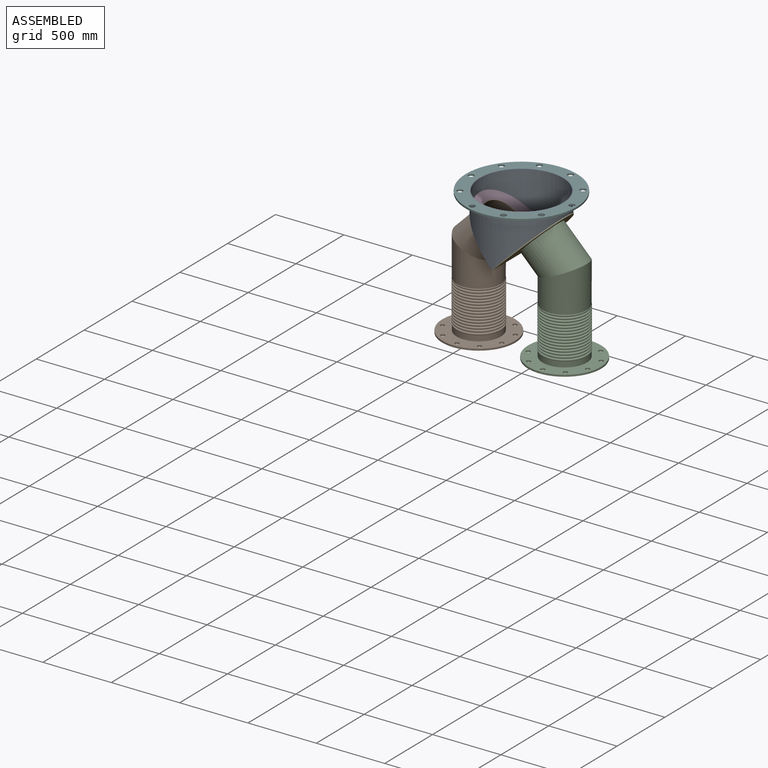
[diagram: assembled view]
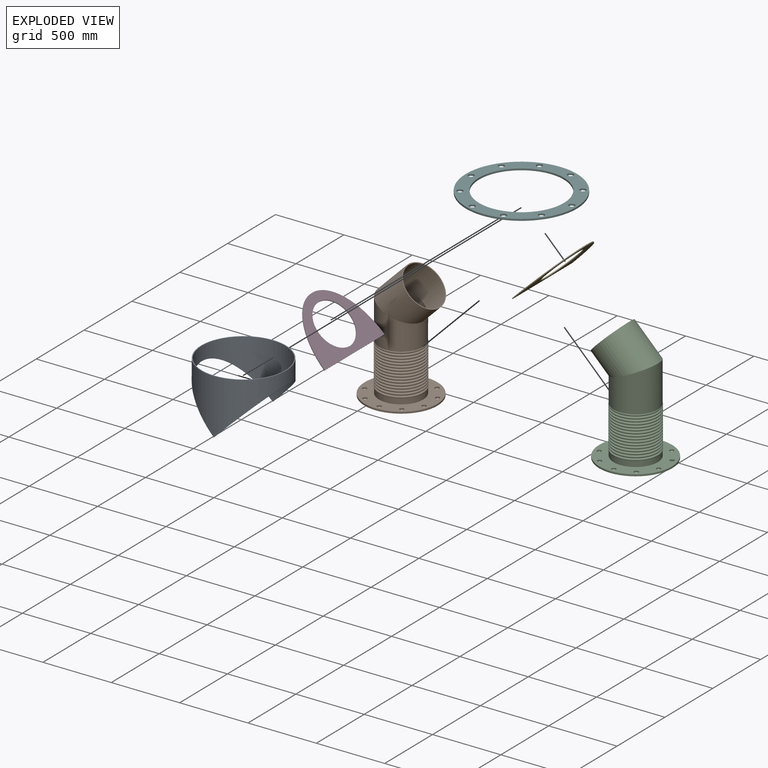
[diagram: exploded view]
GUIDED TOUR — MATED ASSEMBLY WITH SUBASSEMBLIES (Onshape document 0193b54e1186b23830c63294, AutoMate assembly 0193b54e1186b23830c63294_a6a39638752464d87c990a46_e3f97334913c53f67a5aba08_default)

This assembly has 18 component occurrences arranged in 6 top-level units: 4 individual components plus 2 subassemblies (S0, S1). The tour has two levels: first the top level, where each subassembly is treated as one rigid unit; then each subassembly is toured internally in its own section (nesting deeper than one subassembly level is flattened into its subassembly's section).

Components are labeled P0..P17 across the whole record; subassembly units are labeled S0..S1. A mate is a constraint between two units; its type names the relative motion it leaves free:
  FASTENED — locks the two components together rigidly (no relative motion).
Axis/direction vectors are unit vectors and 'through' points are millimeter coordinates, both in the assembly's world frame.

TOP-LEVEL MATES (between units; each subassembly's internal mates are listed in its own section)
  1. FASTENED "Fastened 2": P14 <-> S1, direction (-0.707, 0.000, 0.707) through (-855.40, -209.29, -97.05) mm
  2. FASTENED "Fastened 5": P14 <-> P0, direction (0.000, -1.000, 0.000) through (-1003.58, -520.44, -245.23) mm
  3. FASTENED "Fastened 4": P16 <-> P0, direction (0.000, 0.000, 1.000) through (-1003.58, -209.29, 161.17) mm
  4. FASTENED "Fastened 3": P12 <-> P14, direction (0.000, -1.000, 0.000) through (-1003.58, -520.44, -245.23) mm
  5. FASTENED "Fastened 1": S0 <-> P12, direction (0.707, 0.000, 0.707) through (-1147.26, -209.29, -92.56) mm

TOP-LEVEL ASSEMBLY ORDER
  1. P16 — the base component [order verified]
  2. P0 [order verified]
  3. P14 [order verified]
  4. P12 [order verified]
  5. S1 [order verified]
  6. S0 [order verified]
Order-tag legend:
  [order verified] — this step's position reverses a verified removal order: the component was checked to insert without passing through the ones already placed.

Of the 18 component occurrences, 14 carry the full construction recipe — the FeatureScript program that regenerates the part's solid from scratch; the rest are supplied as boundary geometry only. Each toured unit is shown spotlighted twice — assembled, then exploded with a leader line back to its socket (green = recipe-attached component, orange = geometry-only, blue = subassembly unit; the rest desaturated gray).
NOTE — document 2 of 2 of this assembly tour. The two overview renders and the header above are repeated from document 1; the component sections below continue where the previous document stopped.
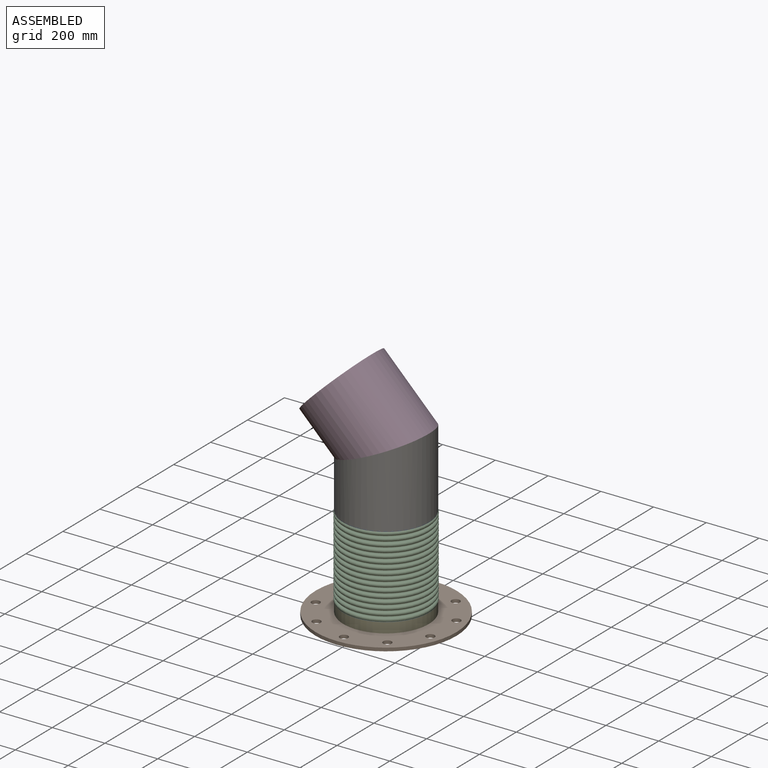
[diagram: subassembly S1 — assembled view]
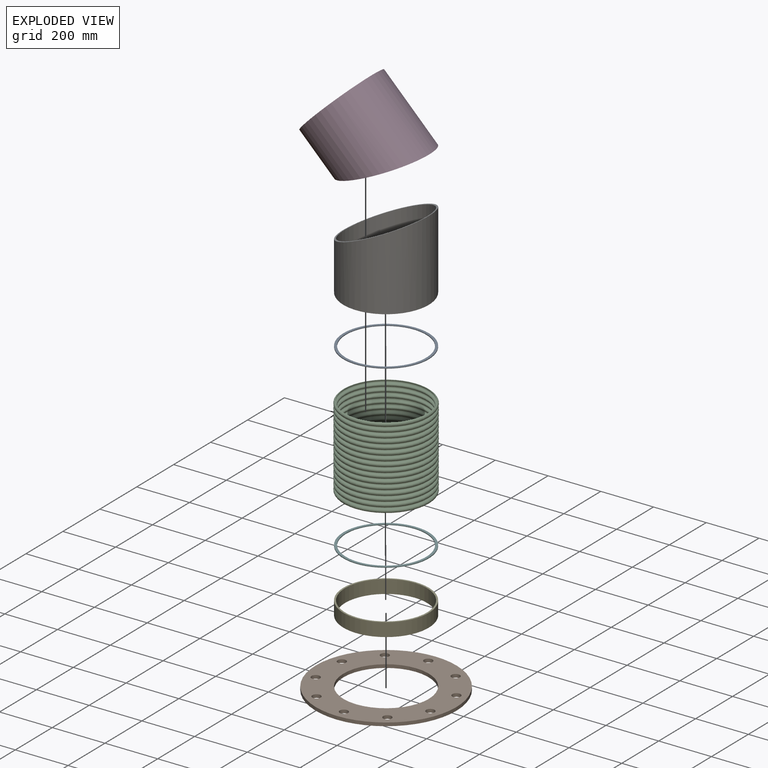
[diagram: subassembly S1 — exploded view]
SUBASSEMBLY S1 TOUR — 7 components, shown here in isolation at its own camera.

INTERNAL MATES
  1. FASTENED "Fastened 1": P11 <-> P3, direction (0.000, 0.000, -1.000) through (-687.30, -209.29, -862.97) mm
  2. FASTENED "Fastened 5": P2 <-> P17, direction (0.000, 0.000, -1.000) through (-687.30, -209.29, -502.88) mm
  3. FASTENED "Fastened 3": P15 <-> P4, direction (0.000, 0.000, -1.000) through (-687.30, -209.29, -812.17) mm
  4. FASTENED "Fastened 4": P4 <-> P2, direction (0.000, 0.000, -1.000) through (-687.30, -209.29, -502.88) mm
  5. FASTENED "Fastened 2": P11 <-> P15, direction (0.000, 0.000, 1.000) through (-687.30, -209.29, -812.17) mm
  6. FASTENED "Fastened 6": P17 <-> P7, direction (-0.383, 0.000, 0.924) through (-687.30, -209.29, -265.15) mm
  7. FASTENED "Fastened 3": P15 <-> P4, direction (0.000, 0.000, -1.000) through (-687.30, -209.29, -812.17) mm
  8. FASTENED "Fastened 4": P4 <-> P2, direction (0.000, 0.000, -1.000) through (-687.30, -209.29, -502.88) mm
  9. FASTENED "Fastened 5": P2 <-> P17, direction (0.000, 0.000, -1.000) through (-687.30, -209.29, -502.88) mm
  10. FASTENED "Fastened 6": P17 <-> P7, direction (-0.383, 0.000, 0.924) through (-687.30, -209.29, -265.15) mm
  11. FASTENED "Fastened 2": P11 <-> P15, direction (0.000, 0.000, 1.000) through (-687.30, -209.29, -812.17) mm
  12. FASTENED "Fastened 1": P11 <-> P3, direction (0.000, 0.000, -1.000) through (-687.30, -209.29, -862.97) mm

ASSEMBLY ORDER (within the subassembly)
  1. P11 — the base component [order verified]
  2. P3 [order verified]
  3. P15 [order verified]
  4. P4 [order verified]
  5. P2 [order verified]
  6. P17 [order verified]
  7. P7 [order verified]
Order-tag legend:
  [order verified] — this step's position reverses a verified removal order: the component was checked to insert without passing through the ones already placed.
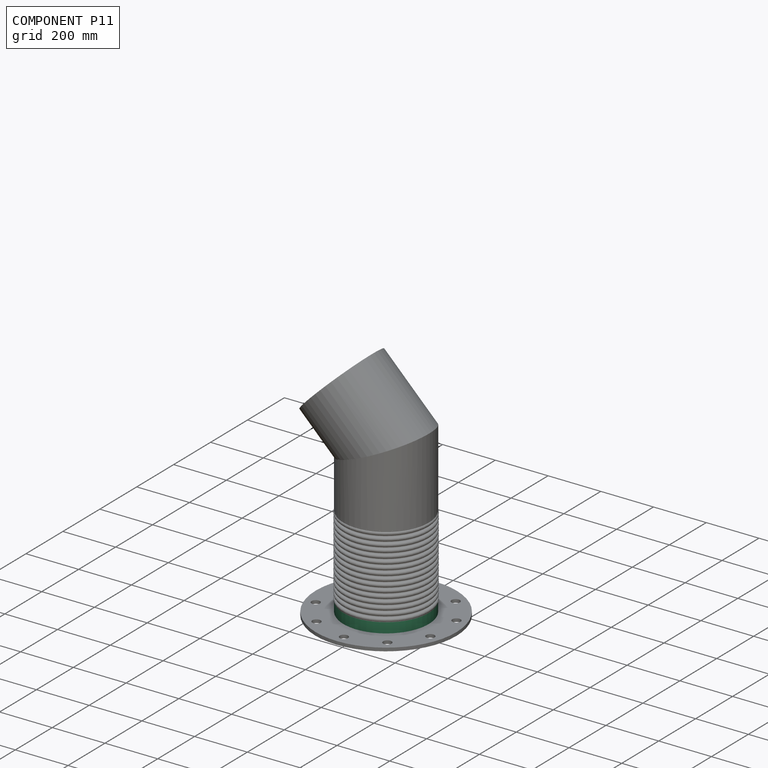
[diagram: component P11 — assembled]
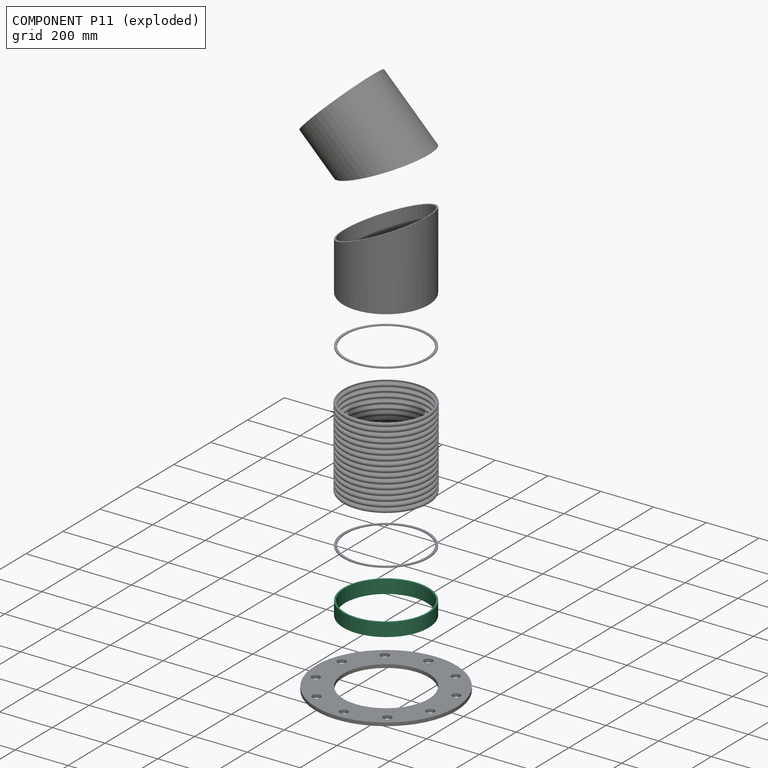
[diagram: component P11 — exploded]
COMPONENT P11 — recipe-attached (CADFS 00170316, mesh-verified: the recipe's output STEP matches this component's geometry to below the mesh-comparison resolution (tessellation chordal tolerance ~0.691 mm)).
Held by: FASTENED mate "Fastened 1" to P3; FASTENED mate "Fastened 2" to P15; FASTENED mate "Fastened 2" to P15; FASTENED mate "Fastened 1" to P3.
Construction recipe (FeatureScript — the CAD program that rebuilds this solid; sketch coordinates are in the units given by the * unit suffixes, e.g. mm):

FeatureScript 1511;
import(path : "onshape/std/geometry.fs", version : "1511.0");
import(path : "onshape/std/common.fs", version : "1511.0");
const mm = millimeter;
const VERTEX = EntityType.VERTEX;
const EDGE = EntityType.EDGE;
const FACE = EntityType.FACE;
const BODY = EntityType.BODY;
function v(x, y){return vector(x, y);}
function OD(order){return orderDisambiguation(order);}
function OSD(set){return originalSetDisambiguation(set);}
function TD(topology){return topologyDisambiguation(topology);}
function TDD(query){return trueDependencyDisambiguation(query);}
function sQuery(a, b, c) {return sketchEntityQuery(a, b, c);}

annotation { "Feature Type Name" : "Feature", "Feature Type Description" : "" }
export const myFeature = defineFeature(function(context is Context, id is Id, definition is map)
    precondition{}
    {
        {
            var Q0;
            Q0=qCreatedBy(makeId("Top.planeOp"),FACE);
            var sketch = newSketch(context, id + "F0", { "sketchPlane" : qUnion([Q0])});
            skCircle(sketch, "E0", {"center": v(0, 0) * mm, "radius": 161.93 * mm});
            skCircle(sketch, "E1.0", {"center": v(0, 0) * mm, "radius": 155.58 * mm});
            skSolve(sketch);
        }
        {
            var Q0;
            Q0=makeQuery(id+"F0.imprint","IMPRINT",FACE,{"disambiguationData":[TD([[makeQuery(id+"F0.imprint","IMPRINT",EDGE,{"derivedFrom":sQuery(id+"F0.wireOp",EDGE,"E1.0")}),-1.0]])]});
            extrude(context, id + "F1", {"entities" : qUnion([Q0]), "depth" : 50.8 * mm});
        }
    });
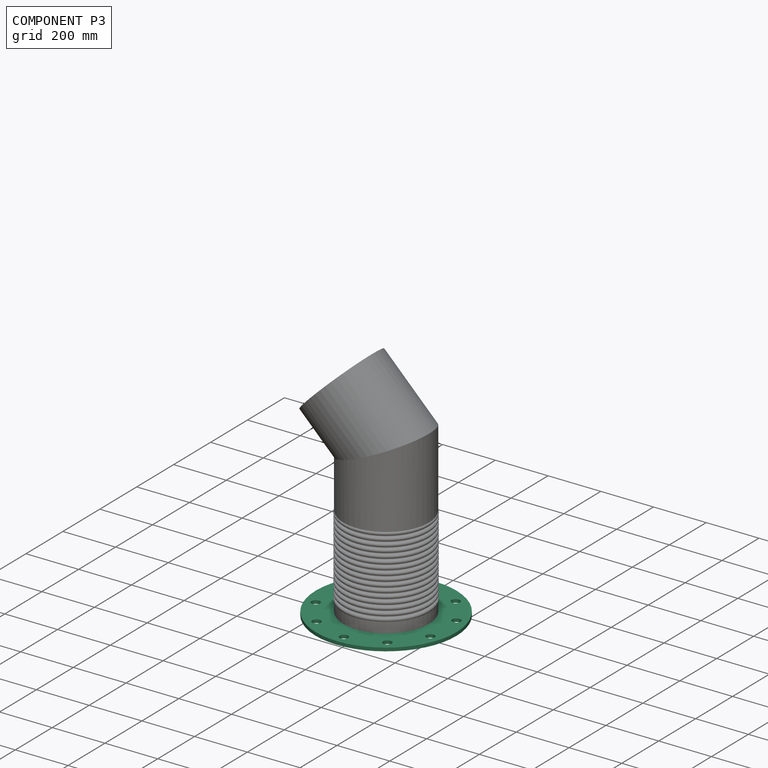
[diagram: component P3 — assembled]
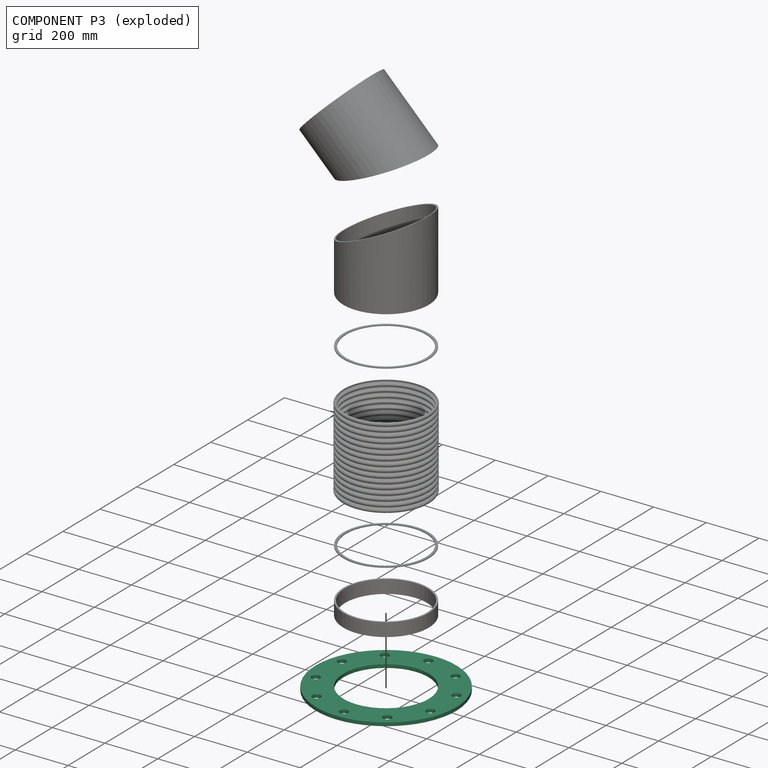
[diagram: component P3 — exploded]
COMPONENT P3 — recipe-attached (CADFS 00170315, mesh-verified: the recipe's output STEP matches this component's geometry to below the mesh-comparison resolution (tessellation chordal tolerance ~1.13 mm)).
Held by: FASTENED mate "Fastened 1" to P11; FASTENED mate "Fastened 1" to P11.
Construction recipe (FeatureScript — the CAD program that rebuilds this solid; sketch coordinates are in the units given by the * unit suffixes, e.g. mm):

FeatureScript 1511;
import(path : "onshape/std/geometry.fs", version : "1511.0");
import(path : "onshape/std/common.fs", version : "1511.0");
const mm = millimeter;
const VERTEX = EntityType.VERTEX;
const EDGE = EntityType.EDGE;
const FACE = EntityType.FACE;
const BODY = EntityType.BODY;
function v(x, y){return vector(x, y);}
function OD(order){return orderDisambiguation(order);}
function OSD(set){return originalSetDisambiguation(set);}
function TD(topology){return topologyDisambiguation(topology);}
function TDD(query){return trueDependencyDisambiguation(query);}
function sQuery(a, b, c) {return sketchEntityQuery(a, b, c);}

annotation { "Feature Type Name" : "Feature", "Feature Type Description" : "" }
export const myFeature = defineFeature(function(context is Context, id is Id, definition is map)
    precondition{}
    {
        {
            var Q0;
            Q0=qCreatedBy(makeId("Top.planeOp"),FACE);
            var sketch = newSketch(context, id + "F0", { "sketchPlane" : qUnion([Q0])});
            skCircle(sketch, "E0", {"center": v(0, 0) * mm, "radius": 161.93 * mm});
            skCircle(sketch, "E1", {"center": v(0, 0) * mm, "radius": 266.7 * mm});
            skSolve(sketch);
        }
        {
            var Q0;
            Q0=makeQuery(id+"F0.imprint","IMPRINT",FACE,{"disambiguationData":[TD([[makeQuery(id+"F0.imprint","IMPRINT",EDGE,{"derivedFrom":sQuery(id+"F0.wireOp",EDGE,"E0")}),-1.0]])]});
            extrude(context, id + "F1", {"entities" : qUnion([Q0]), "depth" : 12.7 * mm});
        }
        {
            var Q0;
            Q0=qCreatedBy(makeId("Top.planeOp"),FACE);
            var sketch = newSketch(context, id + "F2", { "sketchPlane" : qUnion([Q0])});
            skCircle(sketch, "E2", {"center": v(0, 0) * mm, "radius": 228.6 * mm, "construction": true});
            skCircle(sketch, "E3", {"center": v(0, 228.6) * mm, "radius": 15.88 * mm});
            skCircle(sketch, "E4.1.0", {"center": v(-134.37, 184.94) * mm, "radius": 15.88 * mm});
            skCircle(sketch, "E4.2.0", {"center": v(-217.41, 70.64) * mm, "radius": 15.88 * mm});
            skCircle(sketch, "E4.3.0", {"center": v(-217.41, -70.64) * mm, "radius": 15.88 * mm});
            skCircle(sketch, "E4.4.0", {"center": v(-134.37, -184.94) * mm, "radius": 15.88 * mm});
            skCircle(sketch, "E4.5.0", {"center": v(0, -228.6) * mm, "radius": 15.88 * mm});
            skCircle(sketch, "E4.6.0", {"center": v(134.37, -184.94) * mm, "radius": 15.88 * mm});
            skCircle(sketch, "E4.7.0", {"center": v(217.41, -70.64) * mm, "radius": 15.88 * mm});
            skCircle(sketch, "E4.8.0", {"center": v(217.41, 70.64) * mm, "radius": 15.88 * mm});
            skCircle(sketch, "E4.9.0", {"center": v(134.37, 184.94) * mm, "radius": 15.88 * mm});
            skSolve(sketch);
        }
        {
            var Q0;
            Q0 = qSketchRegion(id + "F2", true);
            extrude(context, id + "F3", {"entities" : qUnion([Q0]), "operationType" : NewBodyOperationType.REMOVE, "depth" : 15.88 * mm});
        }
    });
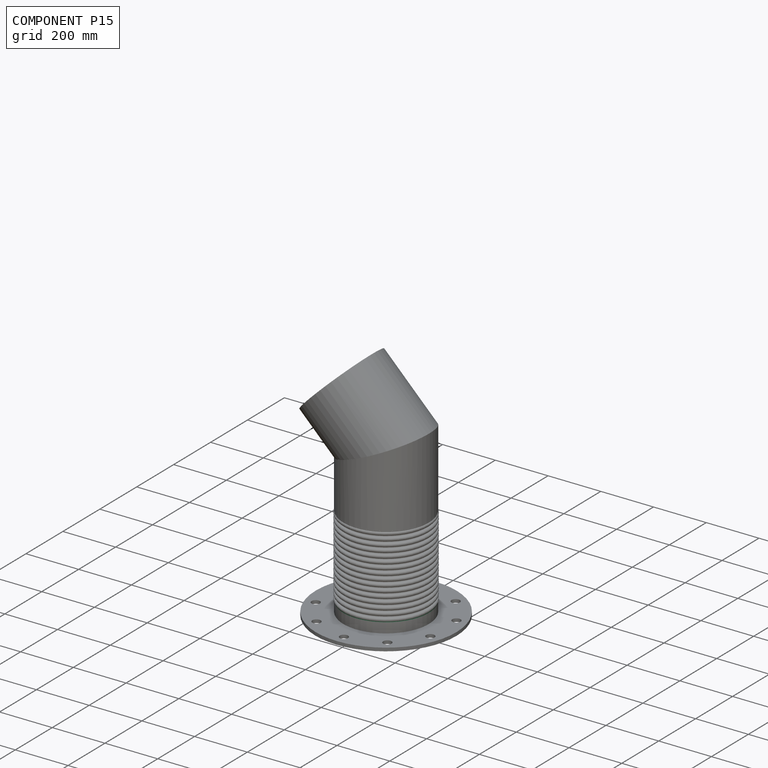
[diagram: component P15 — assembled]
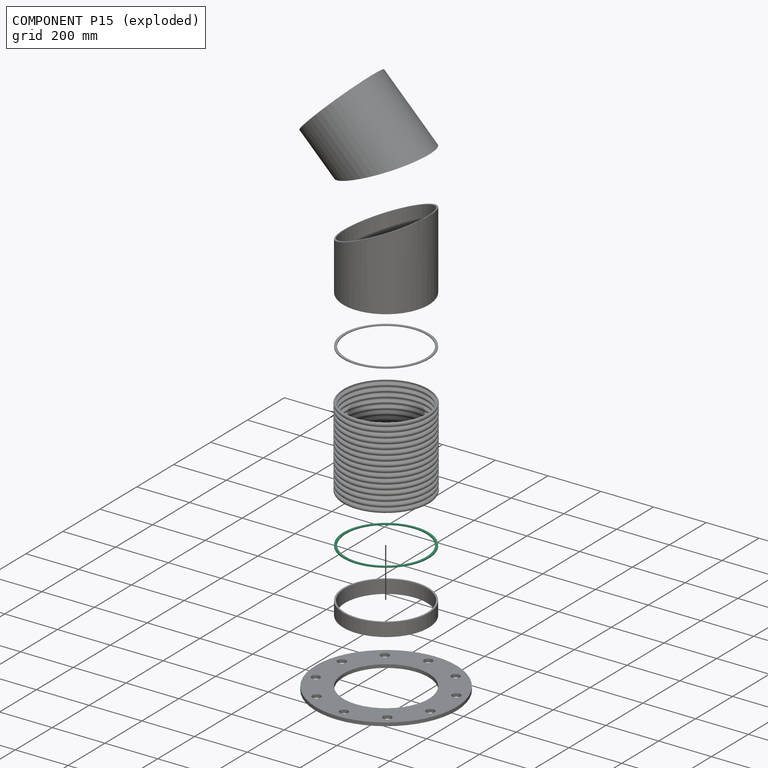
[diagram: component P15 — exploded]
COMPONENT P15 — recipe-attached (CADFS 00170317, mesh-verified: the recipe's output STEP matches this component's geometry to below the mesh-comparison resolution (tessellation chordal tolerance ~0.686 mm)).
Held by: FASTENED mate "Fastened 3" to P4; FASTENED mate "Fastened 2" to P11; FASTENED mate "Fastened 3" to P4; FASTENED mate "Fastened 2" to P11.
Construction recipe (FeatureScript — the CAD program that rebuilds this solid; sketch coordinates are in the units given by the * unit suffixes, e.g. mm):

FeatureScript 1511;
import(path : "onshape/std/geometry.fs", version : "1511.0");
import(path : "onshape/std/common.fs", version : "1511.0");
const mm = millimeter;
const VERTEX = EntityType.VERTEX;
const EDGE = EntityType.EDGE;
const FACE = EntityType.FACE;
const BODY = EntityType.BODY;
function v(x, y){return vector(x, y);}
function OD(order){return orderDisambiguation(order);}
function OSD(set){return originalSetDisambiguation(set);}
function TD(topology){return topologyDisambiguation(topology);}
function TDD(query){return trueDependencyDisambiguation(query);}
function sQuery(a, b, c) {return sketchEntityQuery(a, b, c);}

annotation { "Feature Type Name" : "Feature", "Feature Type Description" : "" }
export const myFeature = defineFeature(function(context is Context, id is Id, definition is map)
    precondition{}
    {
        {
            var Q0;
            Q0=qCreatedBy(makeId("Top.planeOp"),FACE);
            var sketch = newSketch(context, id + "F0", { "sketchPlane" : qUnion([Q0])});
            skCircle(sketch, "E0", {"center": v(0, 0) * mm, "radius": 161.93 * mm});
            skCircle(sketch, "E1", {"center": v(0, 0) * mm, "radius": 152.4 * mm});
            skSolve(sketch);
        }
        {
            var Q0;
            Q0 = qSketchRegion(id + "F0", true);
            extrude(context, id + "F1", {"entities" : qUnion([Q0]), "depth" : 3.17 * mm});
        }
    });
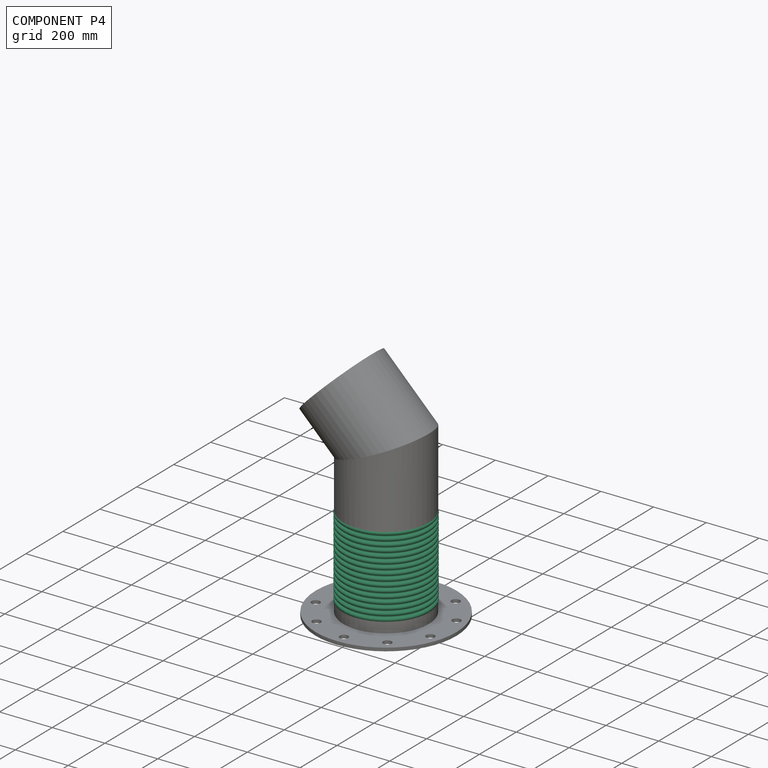
[diagram: component P4 — assembled]
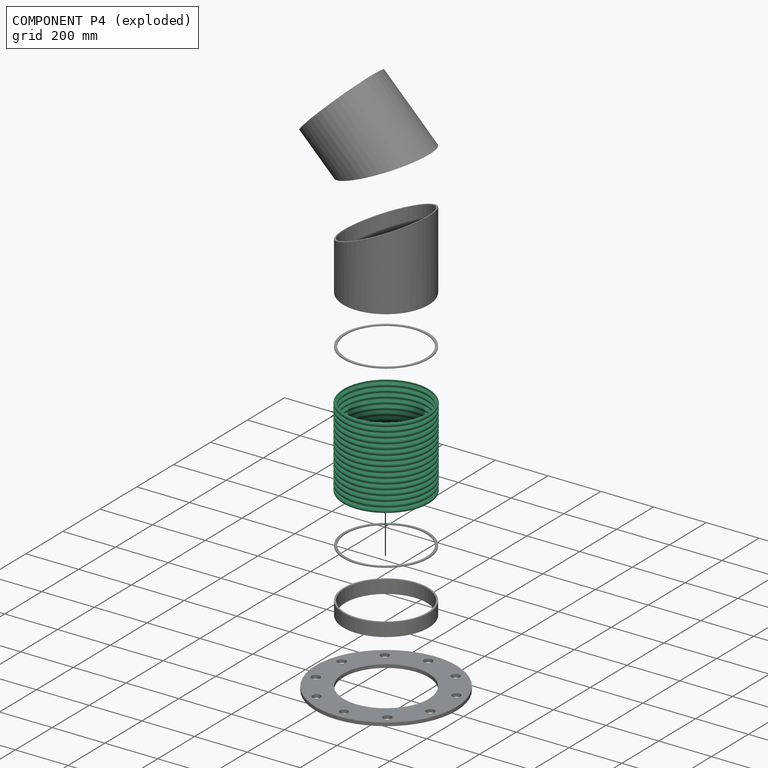
[diagram: component P4 — exploded]
COMPONENT P4 — recipe-attached (CADFS 00170318, mesh-verified: the recipe's output STEP matches this component's geometry to below the mesh-comparison resolution (tessellation chordal tolerance ~0.837 mm)).
Held by: FASTENED mate "Fastened 3" to P15; FASTENED mate "Fastened 4" to P2; FASTENED mate "Fastened 3" to P15; FASTENED mate "Fastened 4" to P2.
Construction recipe (FeatureScript — the CAD program that rebuilds this solid; sketch coordinates are in the units given by the * unit suffixes, e.g. mm):

FeatureScript 1511;
import(path : "onshape/std/geometry.fs", version : "1511.0");
import(path : "onshape/std/common.fs", version : "1511.0");
const mm = millimeter;
const VERTEX = EntityType.VERTEX;
const EDGE = EntityType.EDGE;
const FACE = EntityType.FACE;
const BODY = EntityType.BODY;
function v(x, y){return vector(x, y);}
function OD(order){return orderDisambiguation(order);}
function OSD(set){return originalSetDisambiguation(set);}
function TD(topology){return topologyDisambiguation(topology);}
function TDD(query){return trueDependencyDisambiguation(query);}
function sQuery(a, b, c) {return sketchEntityQuery(a, b, c);}

annotation { "Feature Type Name" : "Feature", "Feature Type Description" : "" }
export const myFeature = defineFeature(function(context is Context, id is Id, definition is map)
    precondition{}
    {
        {
            var Q0;
            Q0=qCreatedBy(makeId("Top.planeOp"),FACE);
            var sketch = newSketch(context, id + "F0", { "sketchPlane" : qUnion([Q0])});
            skArc(sketch, "E0", {"start": v(0, 0) * mm, "mid": v(4.92, 4.92) * mm, "end": v(0, 9.84) * mm});
            skLineSegment(sketch, "E1", {"start": v(0, 0) * mm, "end": v(0, 307.4) * mm, "construction": true});
            skArc(sketch, "E2.0.1.0", {"start": v(0, 19.71) * mm, "mid": v(4.92, 24.63) * mm, "end": v(0, 29.55) * mm});
            skArc(sketch, "E2.0.2.0", {"start": v(0, 39.42) * mm, "mid": v(4.92, 44.34) * mm, "end": v(0, 49.26) * mm});
            skArc(sketch, "E2.0.3.0", {"start": v(0, 59.13) * mm, "mid": v(4.92, 64.05) * mm, "end": v(0, 68.97) * mm});
            skArc(sketch, "E2.0.4.0", {"start": v(0, 78.84) * mm, "mid": v(4.92, 83.76) * mm, "end": v(0, 88.68) * mm});
            skArc(sketch, "E2.0.5.0", {"start": v(0, 98.55) * mm, "mid": v(4.92, 103.47) * mm, "end": v(0, 108.4) * mm});
            skArc(sketch, "E2.0.6.0", {"start": v(0, 118.26) * mm, "mid": v(4.92, 123.18) * mm, "end": v(0, 128.1) * mm});
            skArc(sketch, "E2.0.7.0", {"start": v(0, 137.97) * mm, "mid": v(4.92, 142.9) * mm, "end": v(0, 147.82) * mm});
            skArc(sketch, "E2.0.8.0", {"start": v(0, 157.68) * mm, "mid": v(4.92, 162.6) * mm, "end": v(0, 167.53) * mm});
            skArc(sketch, "E2.0.9.0", {"start": v(0, 177.4) * mm, "mid": v(4.92, 182.31) * mm, "end": v(0, 187.24) * mm});
            skArc(sketch, "E2.0.10.0", {"start": v(0, 197.1) * mm, "mid": v(4.92, 202.03) * mm, "end": v(0, 206.95) * mm});
            skArc(sketch, "E2.0.11.0", {"start": v(0, 216.81) * mm, "mid": v(4.92, 221.74) * mm, "end": v(0, 226.66) * mm});
            skLineSegment(sketch, "E2.direction2", {"start": v(0, 0) * mm, "end": v(0, 19.71) * mm, "construction": true});
            skArc(sketch, "E3.0.0.12", {"start": v(0, 236.52) * mm, "mid": v(4.92, 241.45) * mm, "end": v(0, 246.37) * mm});
            skArc(sketch, "E3.0.0.13", {"start": v(0, 256.24) * mm, "mid": v(4.92, 261.16) * mm, "end": v(0, 266.08) * mm});
            skArc(sketch, "E3.0.0.14", {"start": v(0, 275.95) * mm, "mid": v(4.92, 280.87) * mm, "end": v(0, 285.79) * mm});
            skArc(sketch, "E4.0.0.15", {"start": v(0, 295.66) * mm, "mid": v(4.92, 300.58) * mm, "end": v(0, 305.5) * mm});
            skArc(sketch, "E5", {"start": v(0, 19.71) * mm, "mid": v(-4.93, 14.78) * mm, "end": v(0, 9.84) * mm});
            skArc(sketch, "E6.0.1.0", {"start": v(0, 39.42) * mm, "mid": v(-4.93, 34.49) * mm, "end": v(0, 29.55) * mm});
            skArc(sketch, "E6.0.2.0", {"start": v(0, 59.13) * mm, "mid": v(-4.93, 54.2) * mm, "end": v(0, 49.26) * mm});
            skArc(sketch, "E6.0.3.0", {"start": v(0, 78.84) * mm, "mid": v(-4.93, 73.9) * mm, "end": v(0, 68.97) * mm});
            skArc(sketch, "E6.0.4.0", {"start": v(0, 98.55) * mm, "mid": v(-4.93, 93.62) * mm, "end": v(0, 88.68) * mm});
            skArc(sketch, "E6.0.5.0", {"start": v(0, 118.26) * mm, "mid": v(-4.93, 113.33) * mm, "end": v(0, 108.4) * mm});
            skArc(sketch, "E6.0.6.0", {"start": v(0, 137.97) * mm, "mid": v(-4.93, 133.04) * mm, "end": v(0, 128.1) * mm});
            skArc(sketch, "E6.0.7.0", {"start": v(0, 157.68) * mm, "mid": v(-4.93, 152.75) * mm, "end": v(0, 147.82) * mm});
            skArc(sketch, "E6.0.8.0", {"start": v(0, 177.4) * mm, "mid": v(-4.93, 172.46) * mm, "end": v(0, 167.53) * mm});
            skArc(sketch, "E6.0.9.0", {"start": v(0, 197.1) * mm, "mid": v(-4.93, 192.17) * mm, "end": v(0, 187.24) * mm});
            skArc(sketch, "E6.0.10.0", {"start": v(0, 216.81) * mm, "mid": v(-4.93, 211.88) * mm, "end": v(0, 206.95) * mm});
            skArc(sketch, "E6.0.11.0", {"start": v(0, 236.52) * mm, "mid": v(-4.93, 231.6) * mm, "end": v(0, 226.66) * mm});
            skArc(sketch, "E6.0.12.0", {"start": v(0, 256.24) * mm, "mid": v(-4.93, 251.3) * mm, "end": v(0, 246.37) * mm});
            skArc(sketch, "E6.0.13.0", {"start": v(0, 275.95) * mm, "mid": v(-4.93, 271.01) * mm, "end": v(0, 266.08) * mm});
            skArc(sketch, "E6.0.14.0", {"start": v(0, 295.66) * mm, "mid": v(-4.93, 290.72) * mm, "end": v(0, 285.79) * mm});
            skArc(sketch, "E7.0", {"start": v(0, -1.9) * mm, "mid": v(6.82, 4.92) * mm, "end": v(0, 11.74) * mm});
            skArc(sketch, "E8.0", {"start": v(0, 17.81) * mm, "mid": v(-3.04, 14.78) * mm, "end": v(0, 11.74) * mm});
            skArc(sketch, "E9.0", {"start": v(0, 17.81) * mm, "mid": v(6.82, 24.63) * mm, "end": v(0, 31.45) * mm});
            skArc(sketch, "E10.0.1.0", {"start": v(0, 37.52) * mm, "mid": v(-3.04, 34.49) * mm, "end": v(0, 31.45) * mm});
            skArc(sketch, "E10.0.1.1", {"start": v(0, 37.52) * mm, "mid": v(6.82, 44.34) * mm, "end": v(0, 51.16) * mm});
            skArc(sketch, "E10.0.2.0", {"start": v(0, 57.23) * mm, "mid": v(-3.04, 54.2) * mm, "end": v(0, 51.16) * mm});
            skArc(sketch, "E10.0.2.1", {"start": v(0, 57.23) * mm, "mid": v(6.82, 64.05) * mm, "end": v(0, 70.87) * mm});
            skArc(sketch, "E10.0.3.0", {"start": v(0, 76.94) * mm, "mid": v(-3.04, 73.9) * mm, "end": v(0, 70.87) * mm});
            skArc(sketch, "E10.0.3.1", {"start": v(0, 76.94) * mm, "mid": v(6.82, 83.76) * mm, "end": v(0, 90.58) * mm});
            skArc(sketch, "E10.0.4.0", {"start": v(0, 96.65) * mm, "mid": v(-3.04, 93.62) * mm, "end": v(0, 90.58) * mm});
            skArc(sketch, "E10.0.4.1", {"start": v(0, 96.65) * mm, "mid": v(6.82, 103.47) * mm, "end": v(0, 110.3) * mm});
            skArc(sketch, "E10.0.5.0", {"start": v(0, 116.37) * mm, "mid": v(-3.04, 113.33) * mm, "end": v(0, 110.3) * mm});
            skArc(sketch, "E10.0.5.1", {"start": v(0, 116.37) * mm, "mid": v(6.82, 123.18) * mm, "end": v(0, 130) * mm});
            skArc(sketch, "E10.0.6.0", {"start": v(0, 136.08) * mm, "mid": v(-3.04, 133.04) * mm, "end": v(0, 130) * mm});
            skArc(sketch, "E10.0.6.1", {"start": v(0, 136.08) * mm, "mid": v(6.82, 142.9) * mm, "end": v(0, 149.71) * mm});
            skArc(sketch, "E10.0.7.0", {"start": v(0, 155.79) * mm, "mid": v(-3.04, 152.75) * mm, "end": v(0, 149.71) * mm});
            skArc(sketch, "E10.0.7.1", {"start": v(0, 155.79) * mm, "mid": v(6.82, 162.6) * mm, "end": v(0, 169.42) * mm});
            skArc(sketch, "E10.0.8.0", {"start": v(0, 175.5) * mm, "mid": v(-3.04, 172.46) * mm, "end": v(0, 169.42) * mm});
            skArc(sketch, "E10.0.8.1", {"start": v(0, 175.5) * mm, "mid": v(6.82, 182.31) * mm, "end": v(0, 189.13) * mm});
            skArc(sketch, "E10.0.9.0", {"start": v(0, 195.2) * mm, "mid": v(-3.04, 192.17) * mm, "end": v(0, 189.13) * mm});
            skArc(sketch, "E10.0.9.1", {"start": v(0, 195.2) * mm, "mid": v(6.82, 202.03) * mm, "end": v(0, 208.84) * mm});
            skArc(sketch, "E10.0.10.0", {"start": v(0, 214.92) * mm, "mid": v(-3.04, 211.88) * mm, "end": v(0, 208.84) * mm});
            skArc(sketch, "E10.0.10.1", {"start": v(0, 214.92) * mm, "mid": v(6.82, 221.74) * mm, "end": v(0, 228.55) * mm});
            skArc(sketch, "E10.0.11.0", {"start": v(0, 234.63) * mm, "mid": v(-3.04, 231.6) * mm, "end": v(0, 228.55) * mm});
            skArc(sketch, "E10.0.11.1", {"start": v(0, 234.63) * mm, "mid": v(6.82, 241.45) * mm, "end": v(0, 248.26) * mm});
            skArc(sketch, "E10.0.12.0", {"start": v(0, 254.34) * mm, "mid": v(-3.04, 251.3) * mm, "end": v(0, 248.26) * mm});
            skArc(sketch, "E10.0.12.1", {"start": v(0, 254.34) * mm, "mid": v(6.82, 261.16) * mm, "end": v(0, 267.98) * mm});
            skArc(sketch, "E10.0.13.0", {"start": v(0, 274.05) * mm, "mid": v(-3.04, 271.01) * mm, "end": v(0, 267.98) * mm});
            skArc(sketch, "E10.0.13.1", {"start": v(0, 274.05) * mm, "mid": v(6.82, 280.87) * mm, "end": v(0, 287.69) * mm});
            skArc(sketch, "E10.0.14.0", {"start": v(0, 293.76) * mm, "mid": v(-3.04, 290.72) * mm, "end": v(0, 287.69) * mm});
            skArc(sketch, "E10.0.14.1", {"start": v(0, 293.76) * mm, "mid": v(6.82, 300.58) * mm, "end": v(0, 307.4) * mm});
            skLineSegment(sketch, "E11", {"start": v(0, 307.4) * mm, "end": v(0, 305.5) * mm});
            skLineSegment(sketch, "E12", {"start": v(0, -1.9) * mm, "end": v(0, 0) * mm});
            skSolve(sketch);
        }
        {
            var Q0;
            Q0=qCreatedBy(makeId("Top.planeOp"),FACE);
            var sketch = newSketch(context, id + "F1", { "sketchPlane" : qUnion([Q0])});
            skLineSegment(sketch, "E13", {"start": v(-157.32, 0) * mm, "end": v(-157.32, 304.8) * mm, "construction": true});
            skSolve(sketch);
        }
        {
            var Q0;
            Q0 = qSketchRegion(id + "F0", true);
            var Q1;
            Q1=sQuery(id+"F1.wireOp",EDGE,"E13");
            revolve(context, id + "F2", {"entities" : qUnion([Q0]), "axis" : qUnion([Q1]), "revolveType" : RevolveType.FULL});
        }
    });
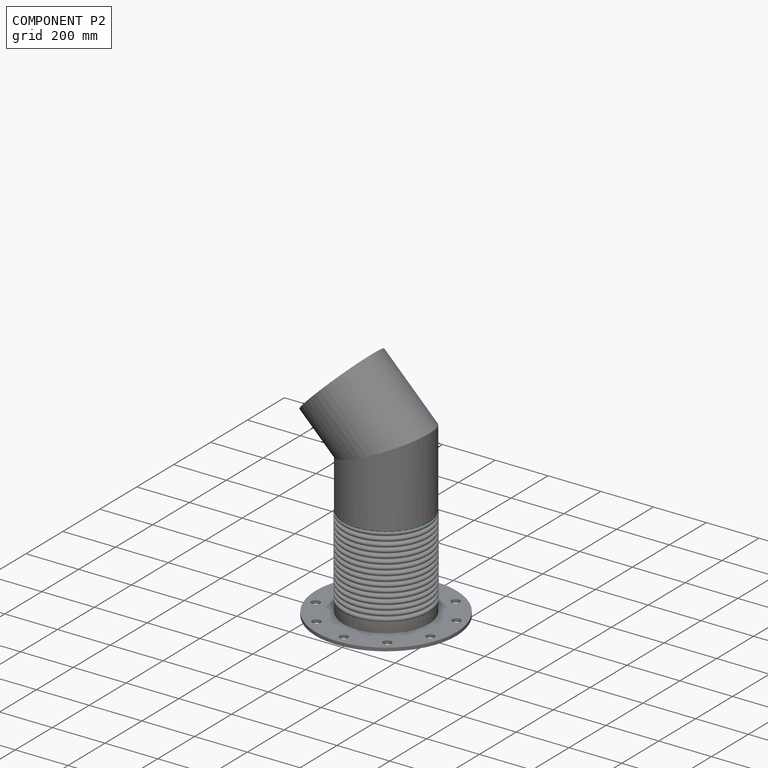
[diagram: component P2 — assembled]
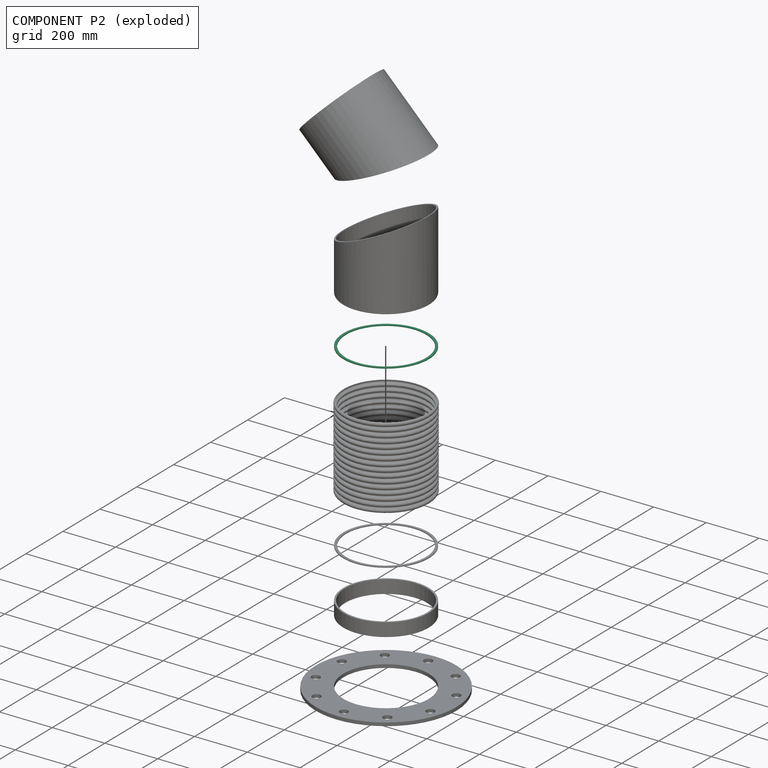
[diagram: component P2 — exploded]
COMPONENT P2 — recipe-attached (CADFS 00170317, mesh-verified: the recipe's output STEP matches this component's geometry to below the mesh-comparison resolution (tessellation chordal tolerance ~0.686 mm)).
Held by: FASTENED mate "Fastened 5" to P17; FASTENED mate "Fastened 4" to P4; FASTENED mate "Fastened 4" to P4; FASTENED mate "Fastened 5" to P17.
Construction recipe (FeatureScript — the CAD program that rebuilds this solid; sketch coordinates are in the units given by the * unit suffixes, e.g. mm):

FeatureScript 1511;
import(path : "onshape/std/geometry.fs", version : "1511.0");
import(path : "onshape/std/common.fs", version : "1511.0");
const mm = millimeter;
const VERTEX = EntityType.VERTEX;
const EDGE = EntityType.EDGE;
const FACE = EntityType.FACE;
const BODY = EntityType.BODY;
function v(x, y){return vector(x, y);}
function OD(order){return orderDisambiguation(order);}
function OSD(set){return originalSetDisambiguation(set);}
function TD(topology){return topologyDisambiguation(topology);}
function TDD(query){return trueDependencyDisambiguation(query);}
function sQuery(a, b, c) {return sketchEntityQuery(a, b, c);}

annotation { "Feature Type Name" : "Feature", "Feature Type Description" : "" }
export const myFeature = defineFeature(function(context is Context, id is Id, definition is map)
    precondition{}
    {
        {
            var Q0;
            Q0=qCreatedBy(makeId("Top.planeOp"),FACE);
            var sketch = newSketch(context, id + "F0", { "sketchPlane" : qUnion([Q0])});
            skCircle(sketch, "E0", {"center": v(0, 0) * mm, "radius": 161.93 * mm});
            skCircle(sketch, "E1", {"center": v(0, 0) * mm, "radius": 152.4 * mm});
            skSolve(sketch);
        }
        {
            var Q0;
            Q0 = qSketchRegion(id + "F0", true);
            extrude(context, id + "F1", {"entities" : qUnion([Q0]), "depth" : 3.17 * mm});
        }
    });
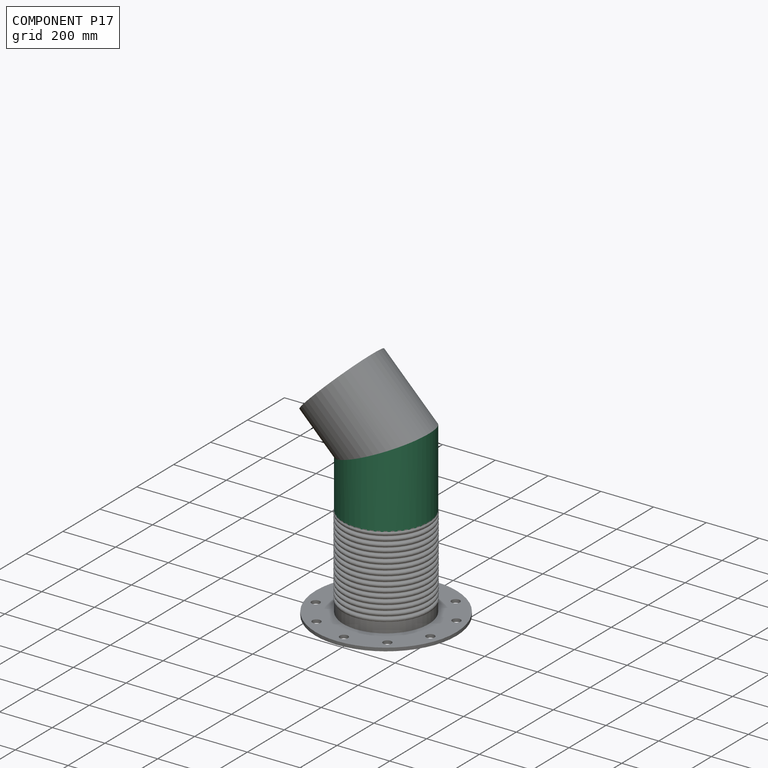
[diagram: component P17 — assembled]
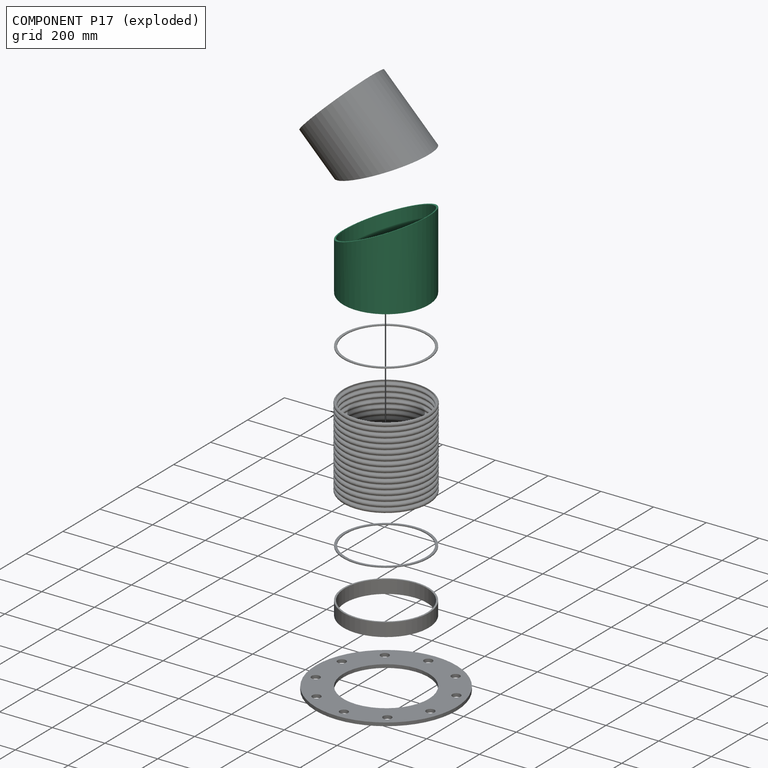
[diagram: component P17 — exploded]
COMPONENT P17 — recipe-attached (CADFS 00170320, mesh-verified: the recipe's output STEP matches this component's geometry to below the mesh-comparison resolution (tessellation chordal tolerance ~0.825 mm)).
Held by: FASTENED mate "Fastened 5" to P2; FASTENED mate "Fastened 6" to P7; FASTENED mate "Fastened 5" to P2; FASTENED mate "Fastened 6" to P7.
Construction recipe (FeatureScript — the CAD program that rebuilds this solid; sketch coordinates are in the units given by the * unit suffixes, e.g. mm):

FeatureScript 1511;
import(path : "onshape/std/geometry.fs", version : "1511.0");
import(path : "onshape/std/common.fs", version : "1511.0");
const mm = millimeter;
const VERTEX = EntityType.VERTEX;
const EDGE = EntityType.EDGE;
const FACE = EntityType.FACE;
const BODY = EntityType.BODY;
function v(x, y){return vector(x, y);}
function OD(order){return orderDisambiguation(order);}
function OSD(set){return originalSetDisambiguation(set);}
function TD(topology){return topologyDisambiguation(topology);}
function TDD(query){return trueDependencyDisambiguation(query);}
function sQuery(a, b, c) {return sketchEntityQuery(a, b, c);}

annotation { "Feature Type Name" : "Feature", "Feature Type Description" : "" }
export const myFeature = defineFeature(function(context is Context, id is Id, definition is map)
    precondition{}
    {
        {
            var Q0;
            Q0=qCreatedBy(makeId("Top.planeOp"),FACE);
            var sketch = newSketch(context, id + "F0", { "sketchPlane" : qUnion([Q0])});
            skCircle(sketch, "E0", {"center": v(0, 0) * mm, "radius": 161.93 * mm});
            skCircle(sketch, "E1.0", {"center": v(0, 0) * mm, "radius": 155.58 * mm});
            skSolve(sketch);
        }
        {
            var Q0;
            Q0=makeQuery(id+"F0.imprint","IMPRINT",FACE,{"disambiguationData":[TD([[makeQuery(id+"F0.imprint","IMPRINT",EDGE,{"derivedFrom":sQuery(id+"F0.wireOp",EDGE,"E1.0")}),-1.0]])]});
            extrude(context, id + "F1", {"entities" : qUnion([Q0]), "depth" : 304.8 * mm});
        }
        {
            var Q0;
            Q0=qCreatedBy(makeId("Front.planeOp"),FACE);
            var sketch = newSketch(context, id + "F2", { "sketchPlane" : qUnion([Q0])});
            skLineSegment(sketch, "E2", {"start": v(0, 0) * mm, "end": v(0, 229.3) * mm, "construction": true});
            skLineSegment(sketch, "E3", {"start": v(0, 229.3) * mm, "end": v(-161.93, 229.3) * mm, "construction": true});
            skLineSegment(sketch, "E4", {"start": v(-161.93, 229.3) * mm, "end": v(-161.93, 304.8) * mm, "construction": true});
            skLineSegment(sketch, "E5", {"start": v(-161.93, 304.8) * mm, "end": v(161.93, 170.66) * mm});
            skLineSegment(sketch, "E6", {"start": v(-161.93, 304.8) * mm, "end": v(-161.93, 423.7) * mm});
            skLineSegment(sketch, "E7", {"start": v(-161.93, 423.7) * mm, "end": v(165.99, 433.47) * mm});
            skLineSegment(sketch, "E8", {"start": v(165.99, 433.47) * mm, "end": v(161.92, 170.66) * mm});
            skSolve(sketch);
        }
        {
            var Q0;
            Q0 = qSketchRegion(id + "F2", true);
            extrude(context, id + "F3", {"entities" : qUnion([Q0]), "operationType" : NewBodyOperationType.REMOVE, "endBound" : BoundingType.THROUGH_ALL, "oppositeDirection" : true, "depth" : 25.4 * mm, "hasSecondDirection" : true, "secondDirectionBound" : SecondDirectionBoundingType.THROUGH_ALL, "secondDirectionOppositeDirection" : false, "secondDirectionDepth" : 25.4 * mm});
        }
    });
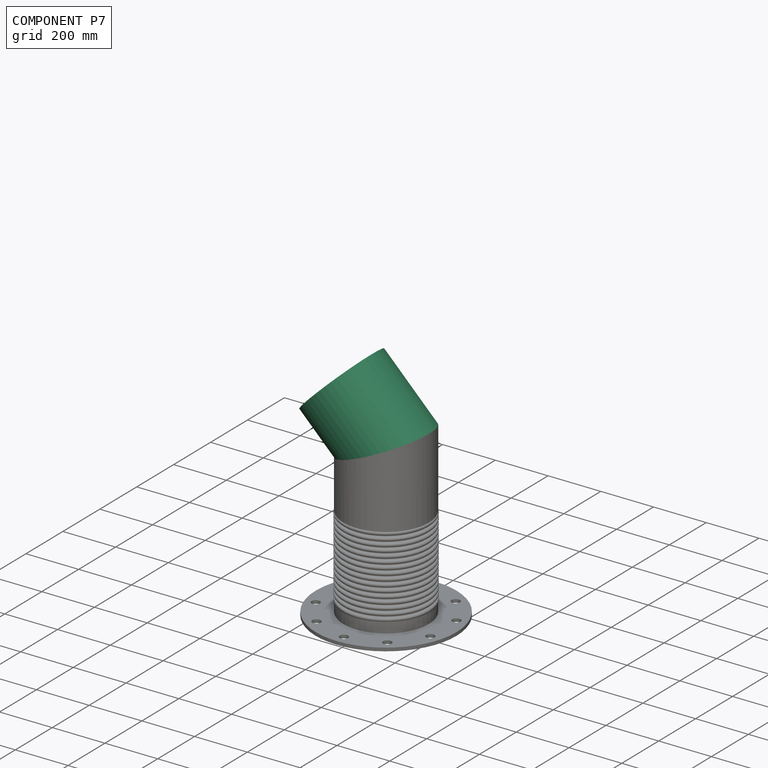
[diagram: component P7 — assembled]
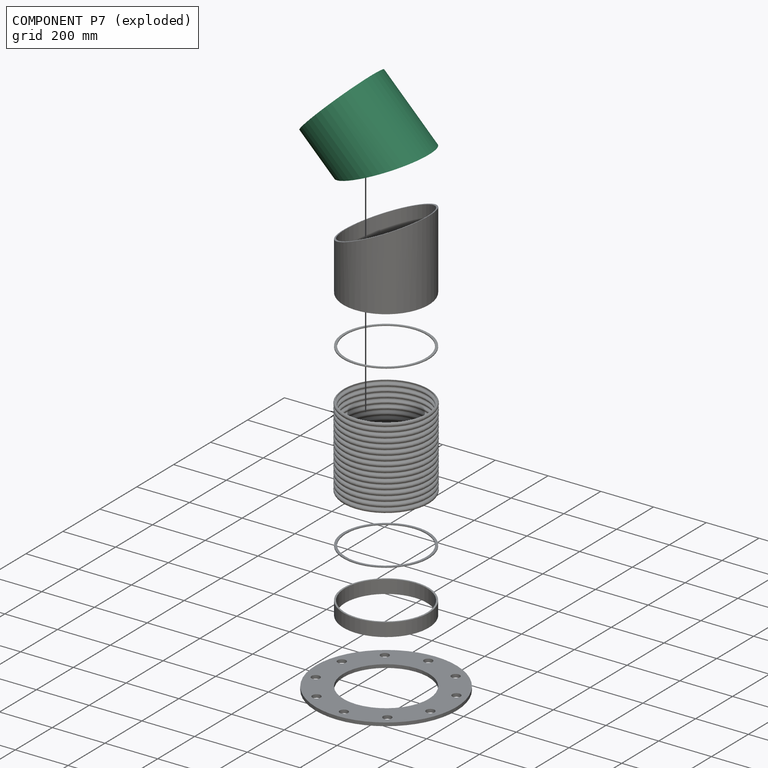
[diagram: component P7 — exploded]
COMPONENT P7 — recipe-attached (CADFS 00170320, mesh-verified: the recipe's output STEP matches this component's geometry to below the mesh-comparison resolution (tessellation chordal tolerance ~0.825 mm)).
Held by: FASTENED mate "Fastened 6" to P17; FASTENED mate "Fastened 6" to P17.
Construction recipe (FeatureScript — the CAD program that rebuilds this solid; sketch coordinates are in the units given by the * unit suffixes, e.g. mm):

FeatureScript 1511;
import(path : "onshape/std/geometry.fs", version : "1511.0");
import(path : "onshape/std/common.fs", version : "1511.0");
const mm = millimeter;
const VERTEX = EntityType.VERTEX;
const EDGE = EntityType.EDGE;
const FACE = EntityType.FACE;
const BODY = EntityType.BODY;
function v(x, y){return vector(x, y);}
function OD(order){return orderDisambiguation(order);}
function OSD(set){return originalSetDisambiguation(set);}
function TD(topology){return topologyDisambiguation(topology);}
function TDD(query){return trueDependencyDisambiguation(query);}
function sQuery(a, b, c) {return sketchEntityQuery(a, b, c);}

annotation { "Feature Type Name" : "Feature", "Feature Type Description" : "" }
export const myFeature = defineFeature(function(context is Context, id is Id, definition is map)
    precondition{}
    {
        {
            var Q0;
            Q0=qCreatedBy(makeId("Top.planeOp"),FACE);
            var sketch = newSketch(context, id + "F0", { "sketchPlane" : qUnion([Q0])});
            skCircle(sketch, "E0", {"center": v(0, 0) * mm, "radius": 161.93 * mm});
            skCircle(sketch, "E1.0", {"center": v(0, 0) * mm, "radius": 155.58 * mm});
            skSolve(sketch);
        }
        {
            var Q0;
            Q0=makeQuery(id+"F0.imprint","IMPRINT",FACE,{"disambiguationData":[TD([[makeQuery(id+"F0.imprint","IMPRINT",EDGE,{"derivedFrom":sQuery(id+"F0.wireOp",EDGE,"E1.0")}),-1.0]])]});
            extrude(context, id + "F1", {"entities" : qUnion([Q0]), "depth" : 304.8 * mm});
        }
        {
            var Q0;
            Q0=qCreatedBy(makeId("Front.planeOp"),FACE);
            var sketch = newSketch(context, id + "F2", { "sketchPlane" : qUnion([Q0])});
            skLineSegment(sketch, "E2", {"start": v(0, 0) * mm, "end": v(0, 229.3) * mm, "construction": true});
            skLineSegment(sketch, "E3", {"start": v(0, 229.3) * mm, "end": v(-161.93, 229.3) * mm, "construction": true});
            skLineSegment(sketch, "E4", {"start": v(-161.93, 229.3) * mm, "end": v(-161.93, 304.8) * mm, "construction": true});
            skLineSegment(sketch, "E5", {"start": v(-161.93, 304.8) * mm, "end": v(161.93, 170.66) * mm});
            skLineSegment(sketch, "E6", {"start": v(-161.93, 304.8) * mm, "end": v(-161.93, 423.7) * mm});
            skLineSegment(sketch, "E7", {"start": v(-161.93, 423.7) * mm, "end": v(165.99, 433.47) * mm});
            skLineSegment(sketch, "E8", {"start": v(165.99, 433.47) * mm, "end": v(161.92, 170.66) * mm});
            skSolve(sketch);
        }
        {
            var Q0;
            Q0 = qSketchRegion(id + "F2", true);
            extrude(context, id + "F3", {"entities" : qUnion([Q0]), "operationType" : NewBodyOperationType.REMOVE, "endBound" : BoundingType.THROUGH_ALL, "oppositeDirection" : true, "depth" : 25.4 * mm, "hasSecondDirection" : true, "secondDirectionBound" : SecondDirectionBoundingType.THROUGH_ALL, "secondDirectionOppositeDirection" : false, "secondDirectionDepth" : 25.4 * mm});
        }
    });
PROVENANCE & LICENSES
Assembly (occurrences, transforms, mates, per-part STEP geometry): AutoMate dataset, Zenodo record 7776208, CC0.
Construction recipes: CADFS (HuggingFace VladPyatov/CADFS, CC-BY-4.0, layered over the ABC dataset), FeatureScript reconstruction programs keyed by ABC model id.
Join: ABC meta listings map ABC model id -> Onshape documentId; within a shared document, parts are matched by geometric signature (bounding-box dims + volume at 0.1% relative tolerance, exact B-rep face/solid counts).
Verification: 14 of this assembly's 18 components carry a recipe attachment, and every attachment is mesh-verified: the CADFS STEP and the AutoMate member STEP were compared as meshes in their shared local frame (symmetric sampled-point-to-mesh distance); worst across the 14 attachments: below the mesh-comparison resolution (tessellation chordal tolerance ~1.13 mm) on a 754 mm part.
Renders: orthographic iso camera (az 35 / el 25); the floor grid conveys scale (grid pitch printed in each image; no ruler). In the exploded view each component is displaced by its stored offset vector: the offsets alone carry the explosion direction (mate normal/axis signs are not orientation cues and do not encode it), and separation distances are assigned per mate-chain, not proportionally to assembly-order depth.
